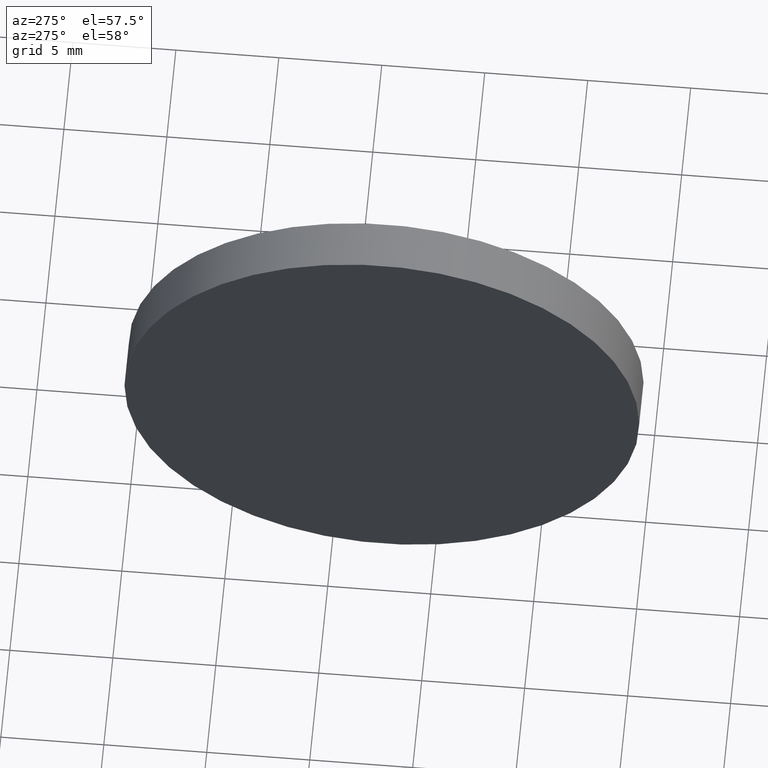
[diagram: clean part render]
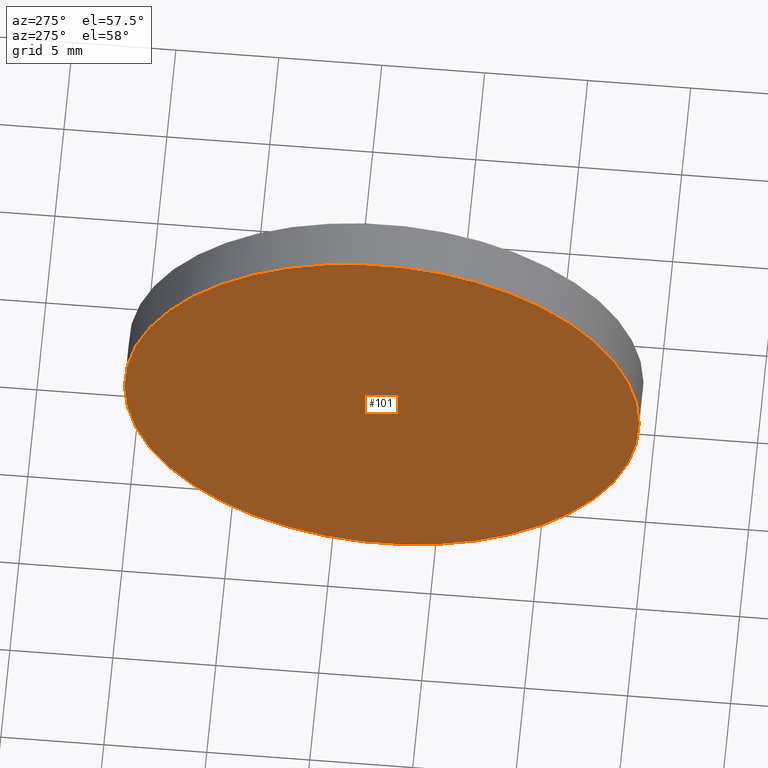
[diagram: same view with one face highlighted and labeled with its STEP entity id]
A machine part, auxiliary view. The second image highlights one B-rep face of the part: STEP entity #101.
In plain terms, the highlighted planar face has unit normal (1, -0, 0).
Its self-contained STEP definition (entity closure, byte-faithful):
#4 = DIRECTION ( 'NONE',  ( 1.000000000000000000, -7.636108817321419600E-016, 0.0000000000000000000 ) ) ;
#15 = CARTESIAN_POINT ( 'NONE',  ( 57.35819015802111700, 45.07872591329309100, 1.530808498934191900E-015 ) ) ;
#18 = VERTEX_POINT ( 'NONE', #45 ) ;
#24 = FACE_OUTER_BOUND ( 'NONE', #110, .T. ) ;
#28 = EDGE_CURVE ( 'NONE', #18, #159, #166, .T. ) ;
#40 = AXIS2_PLACEMENT_3D ( 'NONE', #72, #4, #126 ) ;
#45 = CARTESIAN_POINT ( 'NONE',  ( 57.35819015802110200, 20.07872591329309800, 0.0000000000000000000 ) ) ;
#46 = ORIENTED_EDGE ( 'NONE', *, *, #162, .T. ) ;
#54 = DIRECTION ( 'NONE',  ( -5.551115123125784700E-016, -1.000000000000000000, 0.0000000000000000000 ) ) ;
#62 = PLANE ( 'NONE',  #40 ) ;
#72 = CARTESIAN_POINT ( 'NONE',  ( 57.35819015802111000, 32.57872591329309100, 0.0000000000000000000 ) ) ;
#85 = AXIS2_PLACEMENT_3D ( 'NONE', #106, #122, #54 ) ;
#86 = CARTESIAN_POINT ( 'NONE',  ( 57.35819015802111000, 32.57872591329309800, 0.0000000000000000000 ) ) ;
#89 = DIRECTION ( 'NONE',  ( -1.000000000000000000, 7.636108817321419600E-016, -0.0000000000000000000 ) ) ;
#101 = ADVANCED_FACE ( 'NONE', ( #24 ), #62, .F. ) ;
#106 = CARTESIAN_POINT ( 'NONE',  ( 57.35819015802111000, 32.57872591329309800, 0.0000000000000000000 ) ) ;
#110 = EDGE_LOOP ( 'NONE', ( #130, #46 ) ) ;
#122 = DIRECTION ( 'NONE',  ( -1.000000000000000000, 7.636108817321419600E-016, -0.0000000000000000000 ) ) ;
#126 = DIRECTION ( 'NONE',  ( 7.636108817321419600E-016, 1.000000000000000000, 0.0000000000000000000 ) ) ;
#129 = CIRCLE ( 'NONE', #145, 12.49999999999999600 ) ;
#130 = ORIENTED_EDGE ( 'NONE', *, *, #28, .T. ) ;
#138 = DIRECTION ( 'NONE',  ( -5.551115123125784700E-016, -1.000000000000000000, 0.0000000000000000000 ) ) ;
#145 = AXIS2_PLACEMENT_3D ( 'NONE', #86, #89, #138 ) ;
#159 = VERTEX_POINT ( 'NONE', #15 ) ;
#162 = EDGE_CURVE ( 'NONE', #159, #18, #129, .T. ) ;
#166 = CIRCLE ( 'NONE', #85, 12.49999999999999600 ) ;